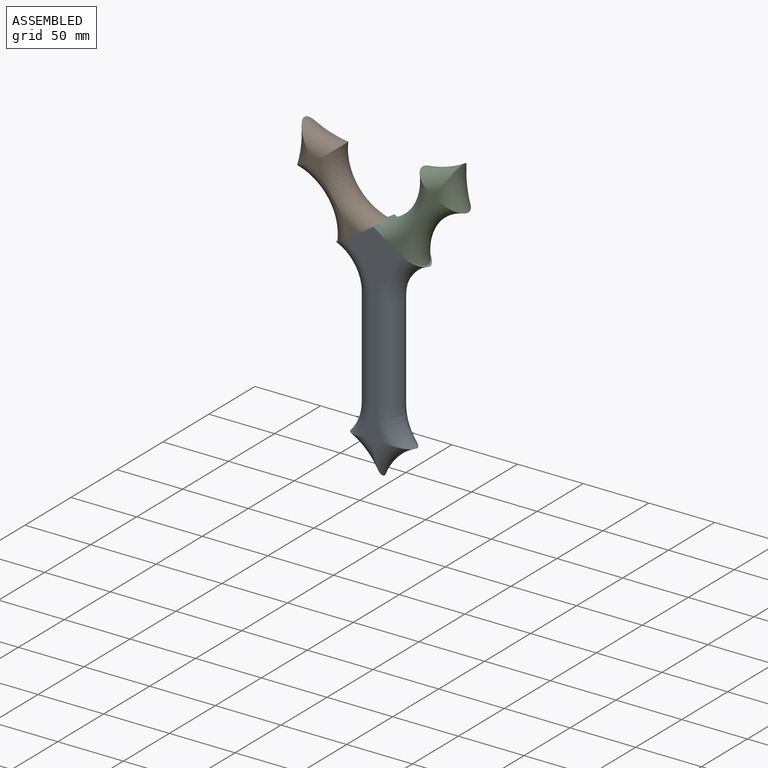
[diagram: assembled view]
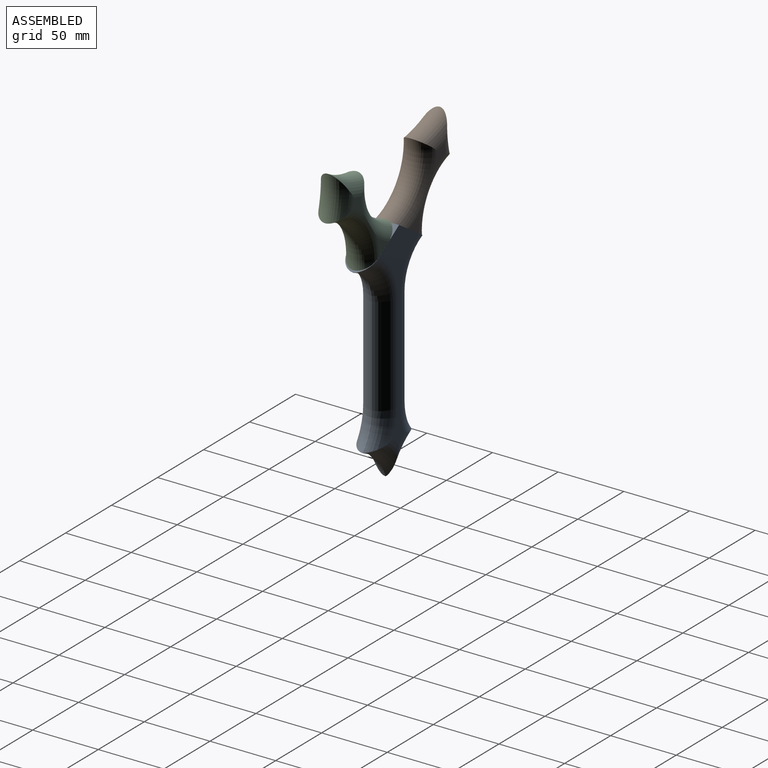
[diagram: assembled view, second angle]
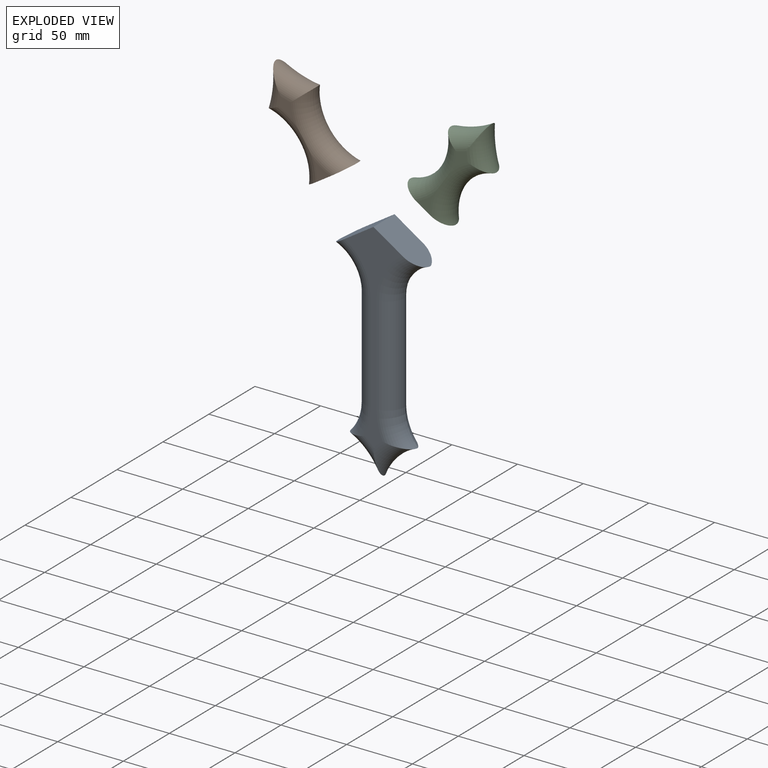
[diagram: exploded view]
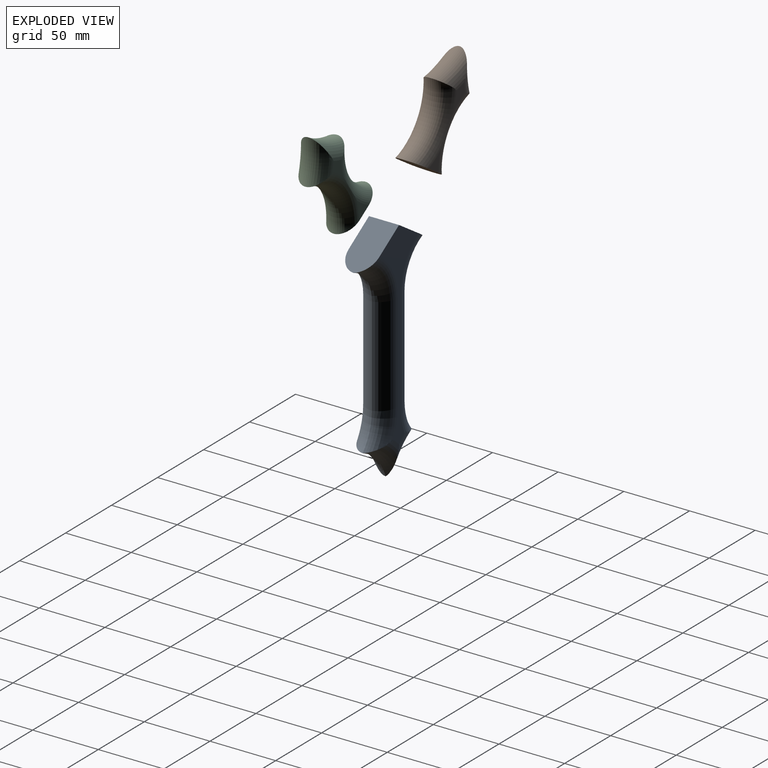
[diagram: exploded view, second angle]
ASSEMBLY  parts=3 mates=2
PART A: 20 faces, bbox 69.8x22.9x179.7 mm
  f0: plane 34.75x22.86mm, normal (0.54,0,0.84), area 859.7mm2, adj f1,f2,f3,f4,f12
  f1: plane 34.75x22.86mm, normal (-0.54,0,0.84), area 859.7mm2, adj f0,f2,f3,f8,f19
  f2: plane 152.19x44.39mm, normal (0,-1,0), area 1441.6mm2, adj f0,f1,f4,f5,f6,f7,f8,f9
  f3: plane 151.12x43.02mm, normal (0,1,0), area 1222.2mm2, adj f0,f1,f12,f13,f14,f15,f16,f17
  f4: torus R=41.34mm, axis (0,-1,0), area 762.3mm2, adj f0,f2,f5,f12
  f5: cylinder r=12.7mm len=75.12mm, axis (0,0,-1), area 1498.5mm2, adj f2,f4,f6,f13
  f6: torus R=49.96mm, axis (0,-1,0), area 507.4mm2, adj f2,f5,f7,f14
  f7: torus R=56.83mm, axis (0,-1,0), area 510.5mm2, adj f2,f6,f9,f15
  f8: torus R=41.34mm, axis (0,-1,0), area 762.3mm2, adj f1,f2,f10,f19
  f9: torus R=56.83mm, axis (0,-1,0), area 510.5mm2, adj f2,f7,f11,f16
  f10: cylinder r=12.7mm len=75.12mm, axis (0,0,1), area 1498.5mm2, adj f2,f8,f11,f18
  f11: torus R=49.96mm, axis (0,-1,0), area 507.4mm2, adj f2,f9,f10,f17
  f12: torus R=42.08mm, axis (0,-1,0), area 699.9mm2, adj f0,f3,f4,f13
  f13: cylinder r=13.97mm len=75.12mm, axis (0,0,1), area 1358.5mm2, adj f3,f5,f12,f14
  f14: torus R=50.7mm, axis (0,-1,0), area 451.1mm2, adj f3,f6,f13,f15
  f15: torus R=57.57mm, axis (0,-1,0), area 423.4mm2, adj f3,f7,f14,f16
  f16: torus R=57.57mm, axis (0,-1,0), area 423.5mm2, adj f3,f9,f15,f17
  f17: torus R=50.7mm, axis (0,-1,0), area 451.1mm2, adj f3,f11,f16,f18
  f18: cylinder r=13.97mm len=75.12mm, axis (0,0,-1), area 1358.5mm2, adj f3,f10,f17,f19
  f19: torus R=42.08mm, axis (0,-1,0), area 699.9mm2, adj f1,f3,f8,f18
PART B: 9 faces, bbox 75.9x22.9x83.7 mm
  f0: plane 14.28x12.62mm, normal (0,-1,0), area 70.1mm2, adj f2,f6,f8
  f1: plane 14.28x12.62mm, normal (0,1,0), area 70.1mm2, adj f2,f6,f8
  f2: plane 34.75x22.86mm, normal (0.54,0,-0.84), area 795.3mm2, adj f0,f1,f6,f8
  f3: plane 14.62x11.42mm, normal (0,-1,0), area 84.7mm2, adj f5,f6,f7,f8
  f4: plane 14.62x11.42mm, normal (0,1,0), area 84.7mm2, adj f5,f6,f7,f8
  f5: torus R=89.42mm, axis (0,-1,0), area 842.2mm2, adj f3,f4,f6,f7
  f6: torus R=49.53mm, axis (0,-1,0), area 2010.3mm2, adj f0,f1,f2,f3,f4,f5,f8
  f7: torus R=89.42mm, axis (0,-1,0), area 832.1mm2, adj f3,f4,f5,f8
  f8: torus R=49.53mm, axis (0,-1,0), area 2018mm2, adj f0,f1,f2,f3,f4,f6,f7
PART C: 9 faces, bbox 75.9x22.9x83.7 mm
  f0: plane 14.28x12.62mm, normal (0,-1,0), area 70.1mm2, adj f2,f5,f7
  f1: plane 14.62x11.42mm, normal (0,1,0), area 84.7mm2, adj f5,f6,f7,f8
  f2: plane 34.75x22.86mm, normal (-0.54,0,-0.84), area 795.3mm2, adj f0,f4,f5,f7
  f3: plane 14.62x11.42mm, normal (0,-1,0), area 84.7mm2, adj f5,f6,f7,f8
  f4: plane 14.28x12.62mm, normal (0,1,0), area 70.1mm2, adj f2,f5,f7
  f5: torus R=49.53mm, axis (0,-1,0), area 2018mm2, adj f0,f1,f2,f3,f4,f6,f7
  f6: torus R=89.42mm, axis (0,-1,0), area 832.1mm2, adj f1,f3,f5,f8
  f7: torus R=49.53mm, axis (0,-1,0), area 2010.2mm2, adj f0,f1,f2,f3,f4,f5,f8
  f8: torus R=89.42mm, axis (0,-1,0), area 842.2mm2, adj f1,f3,f6,f7
PLACE A t=(-133.71,-49.7,27.96)mm
PLACE B t=(-127.63,-49.72,23.86)mm
PLACE C t=(-138.95,-49.72,22.68)mm
MATE fastened A.f0 <-> C.f2  axis (0.54,0,0.84) through (-117.86,-61.15,60.24)mm
MATE fastened A.f1 <-> B.f2  axis (-0.54,0,0.84) through (-149.72,-61.15,60.24)mm
